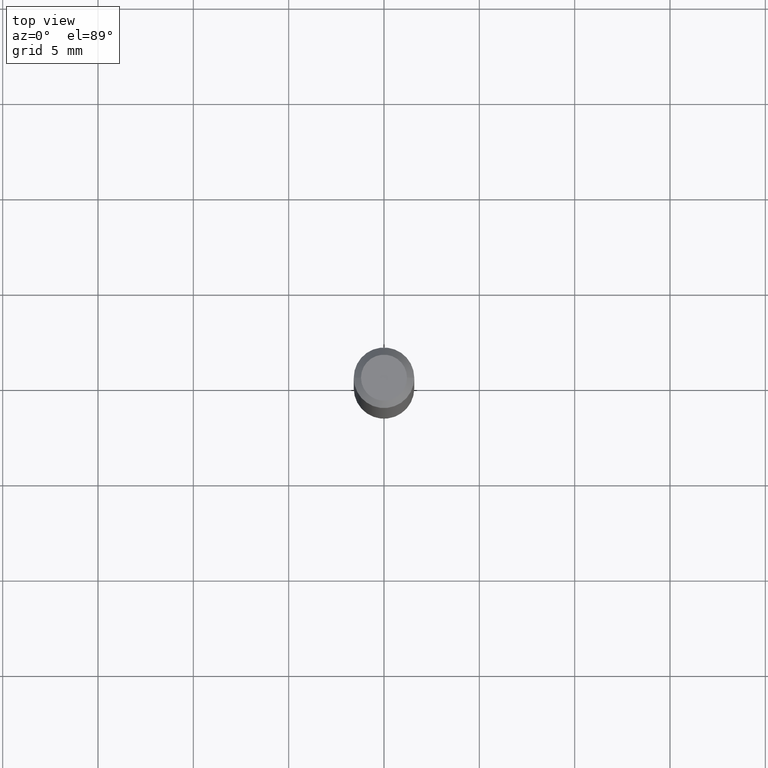
[diagram: clean part render]
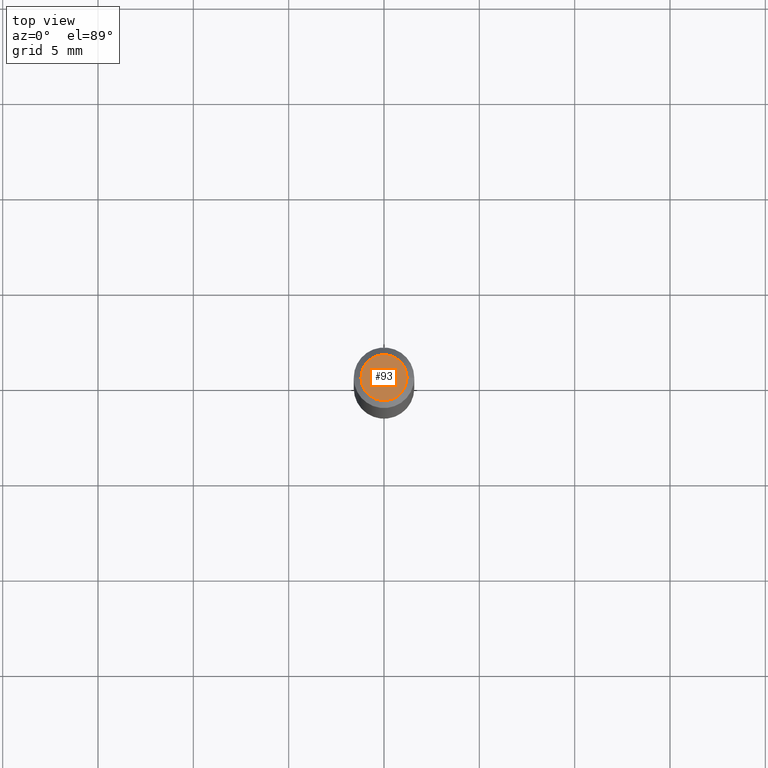
[diagram: same view with one face highlighted and labeled with its STEP entity id]
A machine part, top view. The second image highlights one B-rep face of the part: STEP entity #93.
In plain terms, the highlighted planar face has unit normal (0, -0, -1).
Its self-contained STEP definition (entity closure, byte-faithful):
#57 = DIRECTION ( 'NONE',  ( 2.438088387897960049E-29, -3.491481338843145188E-15, -1.000000000000000000 ) ) ;
#78 = VERTEX_POINT ( 'NONE', #418 ) ;
#83 = ORIENTED_EDGE ( 'NONE', *, *, #224, .T. ) ;
#84 = DIRECTION ( 'NONE',  ( -2.445468806185136597E-29, 3.491481338843145583E-15, 1.000000000000000000 ) ) ;
#85 = CIRCLE ( 'NONE', #196, 0.04749999999999999362 ) ;
#93 = ADVANCED_FACE ( 'NONE', ( #202 ), #242, .F. ) ;
#141 = DIRECTION ( 'NONE',  ( 1.000000000000000000, -6.982962677686267499E-15, 4.852736867747366768E-29 ) ) ;
#169 = VERTEX_POINT ( 'NONE', #244 ) ;
#196 = AXIS2_PLACEMENT_3D ( 'NONE', #436, #84, #444 ) ;
#202 = FACE_OUTER_BOUND ( 'NONE', #237, .T. ) ;
#217 = AXIS2_PLACEMENT_3D ( 'NONE', #404, #461, #141 ) ;
#224 = EDGE_CURVE ( 'NONE', #78, #169, #258, .T. ) ;
#235 = DIRECTION ( 'NONE',  ( -1.000000000000000000, 6.982962677686265922E-15, -4.876176775795935793E-29 ) ) ;
#237 = EDGE_LOOP ( 'NONE', ( #83, #298 ) ) ;
#240 = AXIS2_PLACEMENT_3D ( 'NONE', #389, #57, #235 ) ;
#242 = PLANE ( 'NONE',  #240 ) ;
#244 = CARTESIAN_POINT ( 'NONE',  ( 0.04749999999999999362, -4.035134999187575172E-16, 1.642462207907168699E-16 ) ) ;
#258 = CIRCLE ( 'NONE', #217, 0.04749999999999999362 ) ;
#298 = ORIENTED_EDGE ( 'NONE', *, *, #381, .T. ) ;
#381 = EDGE_CURVE ( 'NONE', #169, #78, #85, .T. ) ;
#389 = CARTESIAN_POINT ( 'NONE',  ( 3.316907271900976096E-16, 0.04749999999999999362, -8.372225319969225571E-17 ) ) ;
#404 = CARTESIAN_POINT ( 'NONE',  ( -4.016590094774884317E-45, 5.734626148662899892E-31, 1.642462207907142815E-16 ) ) ;
#418 = CARTESIAN_POINT ( 'NONE',  ( -0.04749999999999999362, 3.578768372314213957E-16, 1.642462207907118902E-16 ) ) ;
#436 = CARTESIAN_POINT ( 'NONE',  ( -4.016590094774884317E-45, 5.734626148662899892E-31, 1.642462207907142815E-16 ) ) ;
#444 = DIRECTION ( 'NONE',  ( 1.000000000000000000, -6.982962677686267499E-15, 4.852736867747366768E-29 ) ) ;
#461 = DIRECTION ( 'NONE',  ( -2.445468806185136597E-29, 3.491481338843145583E-15, 1.000000000000000000 ) ) ;